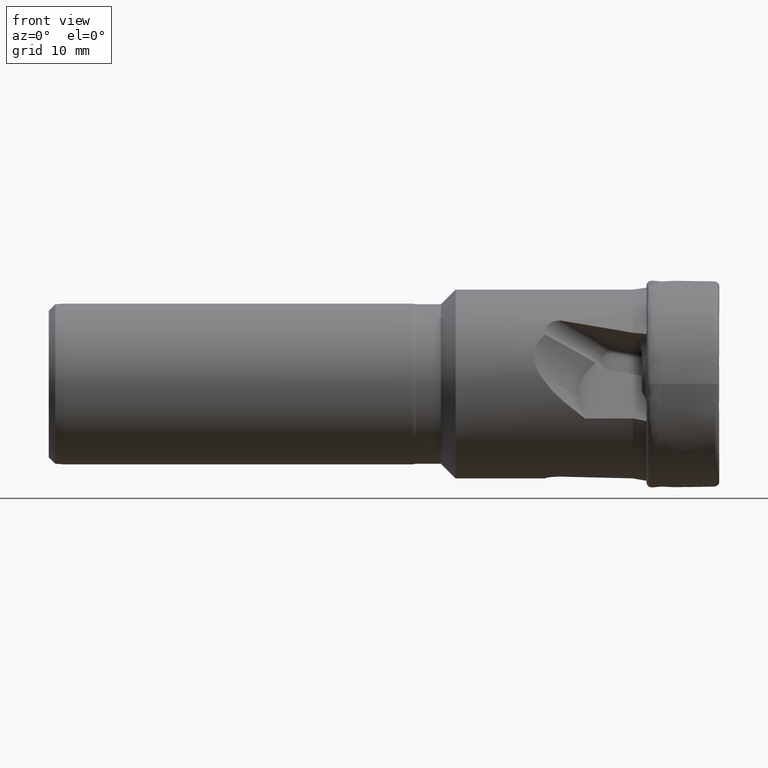
[diagram: clean part render]
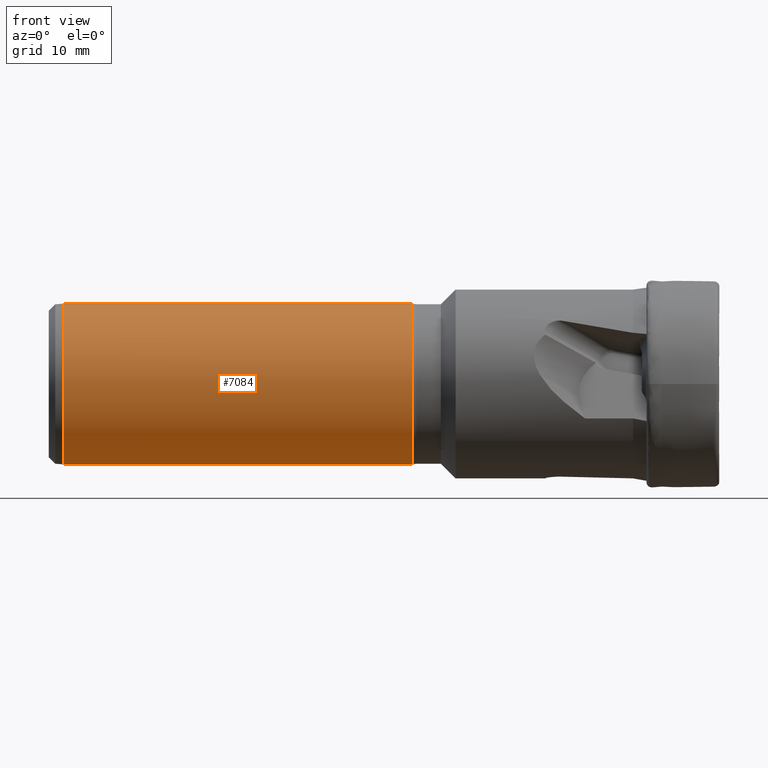
[diagram: same view with one face highlighted and labeled with its STEP entity id]
A machine part, front view. The second image highlights one B-rep face of the part: STEP entity #7084.
In plain terms, the highlighted cylindrical surface (partial cylindrical patch) has radius 12.5 mm, axis along (1, -0, -0).
Its self-contained STEP definition (entity closure, byte-faithful):
#864 = EDGE_CURVE ( 'NONE', #2718, #2672, #4882, .T. ) ;
#890 = EDGE_CURVE ( 'NONE', #2758, #2718, #4887, .T. ) ;
#892 = EDGE_CURVE ( 'NONE', #2755, #2672, #4896, .T. ) ;
#914 = AXIS2_PLACEMENT_3D ( 'NONE', #6033, #5986, #6025 ) ;
#1621 = EDGE_LOOP ( 'NONE', ( #4050, #4054, #4048, #4053 ) ) ;
#2672 = VERTEX_POINT ( 'NONE', #5049 ) ;
#2718 = VERTEX_POINT ( 'NONE', #5047 ) ;
#2755 = VERTEX_POINT ( 'NONE', #5063 ) ;
#2758 = VERTEX_POINT ( 'NONE', #5064 ) ;
#3447 = EDGE_CURVE ( 'NONE', #2755, #2758, #4952, .T. ) ;
#3503 = CARTESIAN_POINT ( 'NONE',  ( 0.0000000000000000000, 1.530808498934190100E-015, 12.49999999999999100 ) ) ;
#3507 = DIRECTION ( 'NONE',  ( 1.000000000000000000, -0.0000000000000000000, -0.0000000000000000000 ) ) ;
#3511 = CARTESIAN_POINT ( 'NONE',  ( 0.0000000000000000000, 0.0000000000000000000, -12.49999999999999100 ) ) ;
#4048 = ORIENTED_EDGE ( 'NONE', *, *, #890, .T. ) ;
#4050 = ORIENTED_EDGE ( 'NONE', *, *, #892, .F. ) ;
#4053 = ORIENTED_EDGE ( 'NONE', *, *, #864, .T. ) ;
#4054 = ORIENTED_EDGE ( 'NONE', *, *, #3447, .T. ) ;
#4822 = AXIS2_PLACEMENT_3D ( 'NONE', #7450, #7446, #7449 ) ;
#4882 = CIRCLE ( 'NONE', #914, 12.49999999999999100 ) ;
#4887 = LINE ( 'NONE', #3511, #4897 ) ;
#4896 = LINE ( 'NONE', #3503, #4899 ) ;
#4897 = VECTOR ( 'NONE', #3507, 1000.000000000000000 ) ;
#4899 = VECTOR ( 'NONE', #7080, 1000.000000000000000 ) ;
#4952 = CIRCLE ( 'NONE', #6150, 12.49999999999999100 ) ;
#5047 = CARTESIAN_POINT ( 'NONE',  ( -47.11999999999995500, 1.530808498934190100E-015, -12.49999999999999100 ) ) ;
#5049 = CARTESIAN_POINT ( 'NONE',  ( -47.11999999999995500, 0.0000000000000000000, 12.49999999999999100 ) ) ;
#5063 = CARTESIAN_POINT ( 'NONE',  ( -101.4699999999999600, 1.530808498934190100E-015, 12.49999999999999100 ) ) ;
#5064 = CARTESIAN_POINT ( 'NONE',  ( -101.4699999999999600, 0.0000000000000000000, -12.49999999999999100 ) ) ;
#5109 = CARTESIAN_POINT ( 'NONE',  ( -101.4699999999999600, 0.0000000000000000000, 0.0000000000000000000 ) ) ;
#5110 = DIRECTION ( 'NONE',  ( 1.000000000000000000, -0.0000000000000000000, -0.0000000000000000000 ) ) ;
#5111 = DIRECTION ( 'NONE',  ( 0.0000000000000000000, 0.0000000000000000000, -1.000000000000000000 ) ) ;
#5794 = FACE_OUTER_BOUND ( 'NONE', #1621, .T. ) ;
#5797 = CYLINDRICAL_SURFACE ( 'NONE', #4822, 12.49999999999999100 ) ;
#5986 = DIRECTION ( 'NONE',  ( -1.000000000000000000, 0.0000000000000000000, 0.0000000000000000000 ) ) ;
#6025 = DIRECTION ( 'NONE',  ( 0.0000000000000000000, 0.0000000000000000000, 1.000000000000000000 ) ) ;
#6033 = CARTESIAN_POINT ( 'NONE',  ( -47.11999999999995500, 0.0000000000000000000, 0.0000000000000000000 ) ) ;
#6150 = AXIS2_PLACEMENT_3D ( 'NONE', #5109, #5110, #5111 ) ;
#7080 = DIRECTION ( 'NONE',  ( 1.000000000000000000, -0.0000000000000000000, -0.0000000000000000000 ) ) ;
#7084 = ADVANCED_FACE ( 'NONE', ( #5794 ), #5797, .T. ) ;
#7446 = DIRECTION ( 'NONE',  ( 1.000000000000000000, -0.0000000000000000000, -0.0000000000000000000 ) ) ;
#7449 = DIRECTION ( 'NONE',  ( 0.0000000000000000000, 0.0000000000000000000, -1.000000000000000000 ) ) ;
#7450 = CARTESIAN_POINT ( 'NONE',  ( 0.0000000000000000000, 0.0000000000000000000, 0.0000000000000000000 ) ) ;